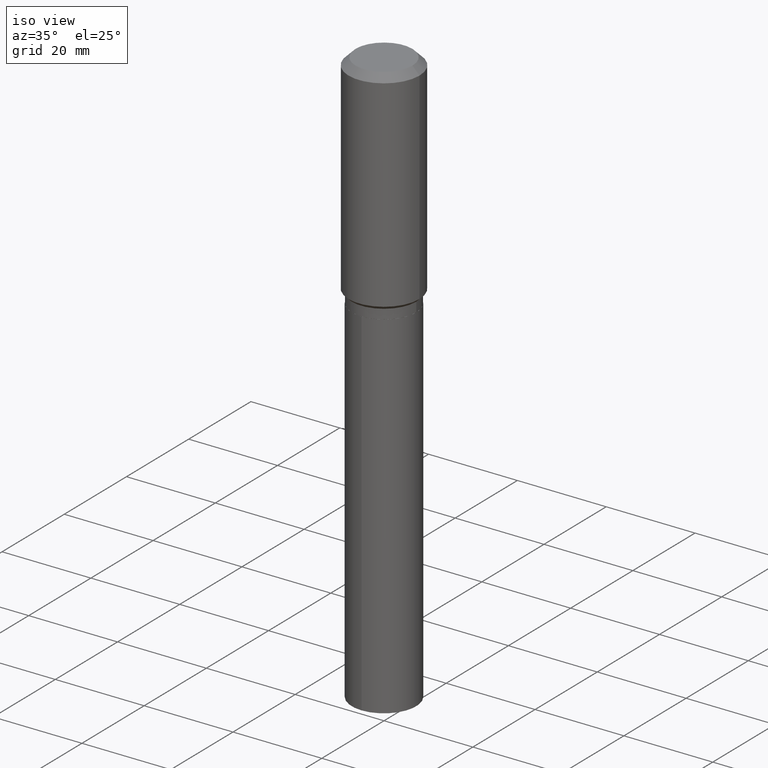
[diagram: clean part render]
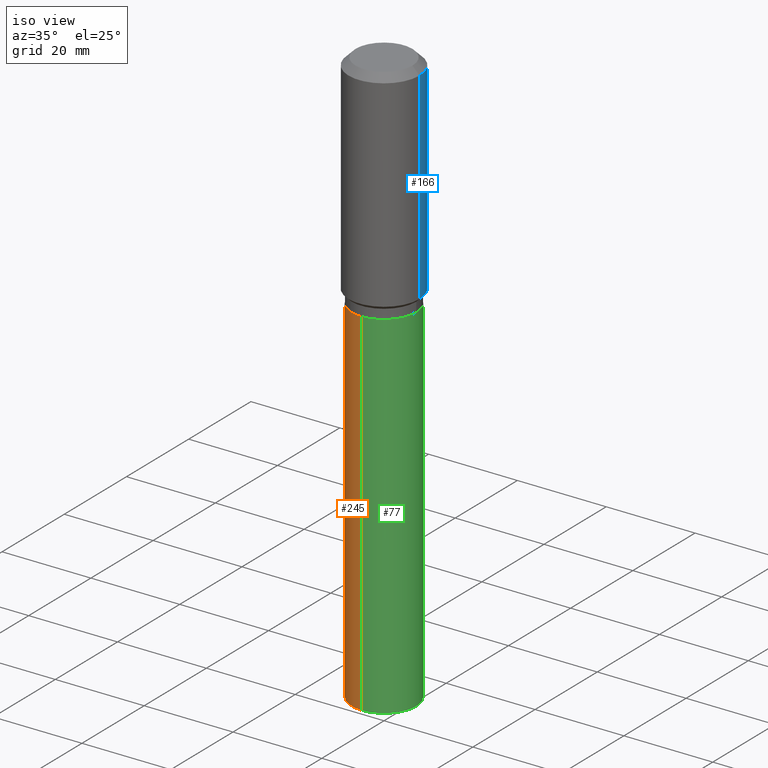
[diagram: same view with three faces highlighted in distinct colors, each labeled with its STEP entity id]
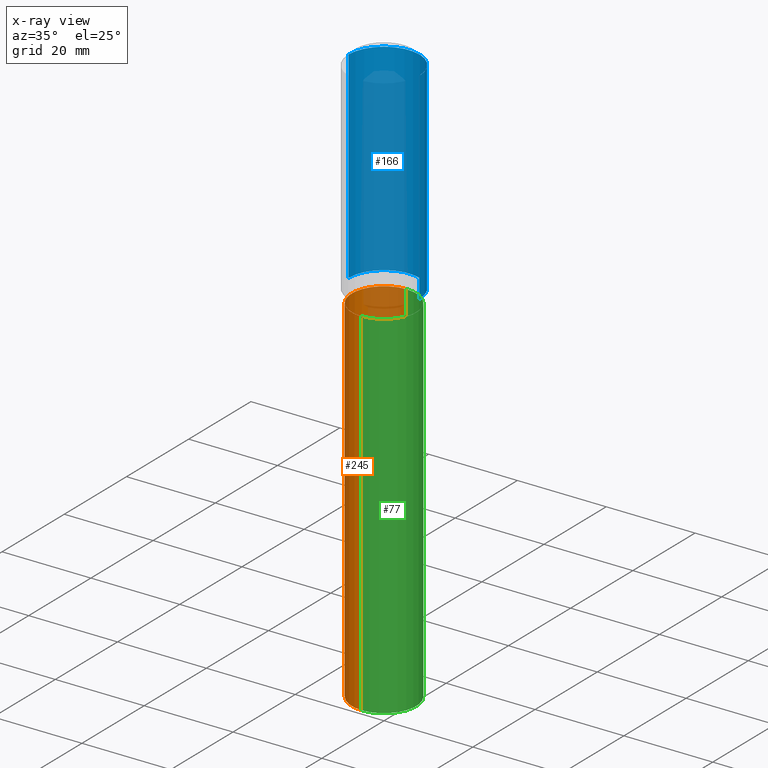
[diagram: x-ray of the same camera — body ghosted, the three highlighted faces saturated]
A machine part, iso view with three faces highlighted in distinct colors.
The next image is the same camera in x-ray (body ghosted, the three faces saturated) — at least one of them is partly hidden behind the body in this view.
Their STEP definitions:

[orange] entity #245 — the highlighted cylindrical surface (partial cylindrical patch) has radius 7.2504 mm, axis along (-0, 0, 1).
#6 = ORIENTED_EDGE ( 'NONE', *, *, #393, .F. ) ;
#15 = DIRECTION ( 'NONE',  ( -6.982962677686265922E-15, -1.000000000000000000, 3.828128209723963046E-15 ) ) ;
#24 = CARTESIAN_POINT ( 'NONE',  ( 2.028244239227331673E-15, 0.2854499999999822180, -5.123558254735715245 ) ) ;
#28 = DIRECTION ( 'NONE',  ( -2.445324435619551208E-29, 3.491688085710125580E-15, 1.000000000000000000 ) ) ;
#34 = AXIS2_PLACEMENT_3D ( 'NONE', #134, #273, #472 ) ;
#41 = VERTEX_POINT ( 'NONE', #71 ) ;
#50 = ORIENTED_EDGE ( 'NONE', *, *, #422, .T. ) ;
#67 = CARTESIAN_POINT ( 'NONE',  ( 2.028244239227331278E-15, 0.2854499999999930981, -1.968300000000000383 ) ) ;
#71 = CARTESIAN_POINT ( 'NONE',  ( -1.993286696345419921E-15, -0.2854500000000179671, -5.123558254735712580 ) ) ;
#74 = VECTOR ( 'NONE', #28, 39.37007874015748143 ) ;
#82 = EDGE_LOOP ( 'NONE', ( #6, #91, #50, #265 ) ) ;
#91 = ORIENTED_EDGE ( 'NONE', *, *, #232, .T. ) ;
#134 = CARTESIAN_POINT ( 'NONE',  ( 1.252904636220974538E-28, -1.788946037464417969E-14, -5.123558254735714357 ) ) ;
#136 = DIRECTION ( 'NONE',  ( -2.445324435619551489E-29, 3.491688085710125580E-15, 1.000000000000000000 ) ) ;
#141 = LINE ( 'NONE', #398, #375 ) ;
#142 = CARTESIAN_POINT ( 'NONE',  ( 4.813416251214202584E-29, -6.872282719244960739E-15, -1.968299999999999272 ) ) ;
#145 = CARTESIAN_POINT ( 'NONE',  ( 4.813416251214202584E-29, -6.872282719244960739E-15, -1.968299999999999272 ) ) ;
#155 = CIRCLE ( 'NONE', #34, 0.2854499999999999815 ) ;
#159 = AXIS2_PLACEMENT_3D ( 'NONE', #145, #136, #15 ) ;
#214 = FACE_OUTER_BOUND ( 'NONE', #82, .T. ) ;
#230 = VERTEX_POINT ( 'NONE', #67 ) ;
#232 = EDGE_CURVE ( 'NONE', #423, #41, #155, .T. ) ;
#242 = VERTEX_POINT ( 'NONE', #307 ) ;
#245 = ADVANCED_FACE ( 'NONE', ( #214 ), #358, .T. ) ;
#265 = ORIENTED_EDGE ( 'NONE', *, *, #336, .F. ) ;
#273 = DIRECTION ( 'NONE',  ( -2.445324435619551489E-29, 3.491688085710125580E-15, 1.000000000000000000 ) ) ;
#282 = DIRECTION ( 'NONE',  ( -2.445324435619551489E-29, 3.491688085710125580E-15, 1.000000000000000000 ) ) ;
#285 = CIRCLE ( 'NONE', #414, 0.2854499999999999815 ) ;
#307 = CARTESIAN_POINT ( 'NONE',  ( -1.993286696345496441E-15, -0.2854500000000068649, -1.968299999999998162 ) ) ;
#323 = DIRECTION ( 'NONE',  ( -2.445324435619551208E-29, 3.491688085710125580E-15, 1.000000000000000000 ) ) ;
#327 = LINE ( 'NONE', #363, #74 ) ;
#336 = EDGE_CURVE ( 'NONE', #230, #242, #285, .T. ) ;
#358 = CYLINDRICAL_SURFACE ( 'NONE', #159, 0.2854499999999999815 ) ;
#363 = CARTESIAN_POINT ( 'NONE',  ( 2.028244239227253575E-15, 0.2854499999999931537, -1.968300000000000383 ) ) ;
#375 = VECTOR ( 'NONE', #323, 39.37007874015748143 ) ;
#393 = EDGE_CURVE ( 'NONE', #423, #230, #327, .T. ) ;
#398 = CARTESIAN_POINT ( 'NONE',  ( -1.993286696345496441E-15, -0.2854500000000068649, -1.968299999999998162 ) ) ;
#414 = AXIS2_PLACEMENT_3D ( 'NONE', #142, #282, #440 ) ;
#422 = EDGE_CURVE ( 'NONE', #41, #242, #141, .T. ) ;
#423 = VERTEX_POINT ( 'NONE', #24 ) ;
#440 = DIRECTION ( 'NONE',  ( -6.982962677686265922E-15, -1.000000000000000000, 3.828128209723963046E-15 ) ) ;
#472 = DIRECTION ( 'NONE',  ( -6.982962677686265922E-15, -1.000000000000000000, 3.828128209723963046E-15 ) ) ;

[blue] entity #166 — the highlighted cylindrical surface (partial cylindrical patch) has radius 7.9997 mm, axis along (-0, 0, 1).
#3 = VECTOR ( 'NONE', #181, 39.37007874015748143 ) ;
#16 = ORIENTED_EDGE ( 'NONE', *, *, #158, .T. ) ;
#30 = CARTESIAN_POINT ( 'NONE',  ( -0.3149500000000001743, 2.237854346276436774E-15, -1.549218606675783237E-29 ) ) ;
#32 = EDGE_LOOP ( 'NONE', ( #16, #201, #152, #85 ) ) ;
#33 = LINE ( 'NONE', #30, #127 ) ;
#65 = DIRECTION ( 'NONE',  ( -2.445468806185136597E-29, 3.491481338843145583E-15, 1.000000000000000000 ) ) ;
#85 = ORIENTED_EDGE ( 'NONE', *, *, #261, .F. ) ;
#97 = LINE ( 'NONE', #391, #3 ) ;
#102 = CARTESIAN_POINT ( 'NONE',  ( 0.3149500000000002298, -8.668649868079754176E-15, -1.852899999999999547 ) ) ;
#113 = EDGE_CURVE ( 'NONE', #138, #377, #33, .T. ) ;
#127 = VECTOR ( 'NONE', #220, 39.37007874015748143 ) ;
#138 = VERTEX_POINT ( 'NONE', #411 ) ;
#152 = ORIENTED_EDGE ( 'NONE', *, *, #478, .F. ) ;
#158 = EDGE_CURVE ( 'NONE', #239, #138, #459, .T. ) ;
#166 = ADVANCED_FACE ( 'NONE', ( #197 ), #270, .T. ) ;
#167 = CIRCLE ( 'NONE', #350, 0.3149500000000000077 ) ;
#179 = CARTESIAN_POINT ( 'NONE',  ( 0.3149500000000000077, -2.419212504871020909E-15, -0.06299000000000037902 ) ) ;
#181 = DIRECTION ( 'NONE',  ( -2.445468806185136877E-29, 3.491481338843145188E-15, 1.000000000000000000 ) ) ;
#197 = FACE_OUTER_BOUND ( 'NONE', #32, .T. ) ;
#201 = ORIENTED_EDGE ( 'NONE', *, *, #113, .T. ) ;
#215 = AXIS2_PLACEMENT_3D ( 'NONE', #456, #316, #303 ) ;
#220 = DIRECTION ( 'NONE',  ( -2.445468806185136877E-29, 3.491481338843145188E-15, 1.000000000000000000 ) ) ;
#239 = VERTEX_POINT ( 'NONE', #102 ) ;
#251 = DIRECTION ( 'NONE',  ( 1.000000000000000000, -6.982962677686264344E-15, 0.000000000000000000 ) ) ;
#255 = AXIS2_PLACEMENT_3D ( 'NONE', #288, #406, #251 ) ;
#258 = CARTESIAN_POINT ( 'NONE',  ( -0.3149500000000000077, -1.106792744861659912E-15, -0.06299000000000037902 ) ) ;
#261 = EDGE_CURVE ( 'NONE', #239, #413, #97, .T. ) ;
#270 = CYLINDRICAL_SURFACE ( 'NONE', #215, 0.3149500000000001743 ) ;
#288 = CARTESIAN_POINT ( 'NONE',  ( 4.531209150980438038E-29, -6.469365772742462727E-15, -1.852899999999999547 ) ) ;
#303 = DIRECTION ( 'NONE',  ( 1.000000000000000000, -6.982962677686265922E-15, 4.876176775795935232E-29 ) ) ;
#310 = CARTESIAN_POINT ( 'NONE',  ( 1.540400801016026505E-30, -2.199284095337310628E-16, -0.06299000000000037902 ) ) ;
#316 = DIRECTION ( 'NONE',  ( -2.445468806185136597E-29, 3.491481338843145583E-15, 1.000000000000000000 ) ) ;
#321 = DIRECTION ( 'NONE',  ( 1.000000000000000000, -6.982962677686266711E-15, 0.000000000000000000 ) ) ;
#350 = AXIS2_PLACEMENT_3D ( 'NONE', #310, #65, #321 ) ;
#377 = VERTEX_POINT ( 'NONE', #258 ) ;
#391 = CARTESIAN_POINT ( 'NONE',  ( 0.3149500000000001743, -2.199284095337290660E-15, 1.535751875536930690E-29 ) ) ;
#406 = DIRECTION ( 'NONE',  ( -2.445468806185136597E-29, 3.491481338843145583E-15, 1.000000000000000000 ) ) ;
#411 = CARTESIAN_POINT ( 'NONE',  ( -0.3149500000000002298, -4.231511426466025954E-15, -1.852899999999999547 ) ) ;
#413 = VERTEX_POINT ( 'NONE', #179 ) ;
#456 = CARTESIAN_POINT ( 'NONE',  ( 0.000000000000000000, 0.000000000000000000, 0.000000000000000000 ) ) ;
#459 = CIRCLE ( 'NONE', #255, 0.3149500000000002298 ) ;
#478 = EDGE_CURVE ( 'NONE', #413, #377, #167, .T. ) ;

[green] entity #77 — the highlighted cylindrical surface (partial cylindrical patch) has radius 7.2504 mm, axis along (-0, 0, 1).
#24 = CARTESIAN_POINT ( 'NONE',  ( 2.028244239227331673E-15, 0.2854499999999822180, -5.123558254735715245 ) ) ;
#28 = DIRECTION ( 'NONE',  ( -2.445324435619551208E-29, 3.491688085710125580E-15, 1.000000000000000000 ) ) ;
#41 = VERTEX_POINT ( 'NONE', #71 ) ;
#55 = ORIENTED_EDGE ( 'NONE', *, *, #264, .F. ) ;
#62 = EDGE_CURVE ( 'NONE', #41, #423, #337, .T. ) ;
#67 = CARTESIAN_POINT ( 'NONE',  ( 2.028244239227331278E-15, 0.2854499999999930981, -1.968300000000000383 ) ) ;
#71 = CARTESIAN_POINT ( 'NONE',  ( -1.993286696345419921E-15, -0.2854500000000179671, -5.123558254735712580 ) ) ;
#72 = AXIS2_PLACEMENT_3D ( 'NONE', #444, #221, #447 ) ;
#74 = VECTOR ( 'NONE', #28, 39.37007874015748143 ) ;
#77 = ADVANCED_FACE ( 'NONE', ( #180 ), #112, .T. ) ;
#84 = ORIENTED_EDGE ( 'NONE', *, *, #422, .F. ) ;
#112 = CYLINDRICAL_SURFACE ( 'NONE', #290, 0.2854499999999999815 ) ;
#141 = LINE ( 'NONE', #398, #375 ) ;
#169 = EDGE_LOOP ( 'NONE', ( #425, #460, #55, #84 ) ) ;
#180 = FACE_OUTER_BOUND ( 'NONE', #169, .T. ) ;
#221 = DIRECTION ( 'NONE',  ( -2.445324435619551489E-29, 3.491688085710125580E-15, 1.000000000000000000 ) ) ;
#230 = VERTEX_POINT ( 'NONE', #67 ) ;
#242 = VERTEX_POINT ( 'NONE', #307 ) ;
#243 = DIRECTION ( 'NONE',  ( -6.982962677686265922E-15, -1.000000000000000000, 3.828128209723963046E-15 ) ) ;
#249 = CIRCLE ( 'NONE', #430, 0.2854499999999999815 ) ;
#253 = CARTESIAN_POINT ( 'NONE',  ( 4.813416251214202584E-29, -6.872282719244960739E-15, -1.968299999999999272 ) ) ;
#264 = EDGE_CURVE ( 'NONE', #242, #230, #249, .T. ) ;
#290 = AXIS2_PLACEMENT_3D ( 'NONE', #253, #335, #487 ) ;
#307 = CARTESIAN_POINT ( 'NONE',  ( -1.993286696345496441E-15, -0.2854500000000068649, -1.968299999999998162 ) ) ;
#323 = DIRECTION ( 'NONE',  ( -2.445324435619551208E-29, 3.491688085710125580E-15, 1.000000000000000000 ) ) ;
#325 = CARTESIAN_POINT ( 'NONE',  ( 4.813416251214202584E-29, -6.872282719244960739E-15, -1.968299999999999272 ) ) ;
#327 = LINE ( 'NONE', #363, #74 ) ;
#335 = DIRECTION ( 'NONE',  ( -2.445324435619551489E-29, 3.491688085710125580E-15, 1.000000000000000000 ) ) ;
#337 = CIRCLE ( 'NONE', #72, 0.2854499999999999815 ) ;
#363 = CARTESIAN_POINT ( 'NONE',  ( 2.028244239227253575E-15, 0.2854499999999931537, -1.968300000000000383 ) ) ;
#375 = VECTOR ( 'NONE', #323, 39.37007874015748143 ) ;
#393 = EDGE_CURVE ( 'NONE', #423, #230, #327, .T. ) ;
#398 = CARTESIAN_POINT ( 'NONE',  ( -1.993286696345496441E-15, -0.2854500000000068649, -1.968299999999998162 ) ) ;
#422 = EDGE_CURVE ( 'NONE', #41, #242, #141, .T. ) ;
#423 = VERTEX_POINT ( 'NONE', #24 ) ;
#425 = ORIENTED_EDGE ( 'NONE', *, *, #62, .T. ) ;
#430 = AXIS2_PLACEMENT_3D ( 'NONE', #325, #436, #243 ) ;
#436 = DIRECTION ( 'NONE',  ( -2.445324435619551489E-29, 3.491688085710125580E-15, 1.000000000000000000 ) ) ;
#444 = CARTESIAN_POINT ( 'NONE',  ( 1.252904636220974538E-28, -1.788946037464417969E-14, -5.123558254735714357 ) ) ;
#447 = DIRECTION ( 'NONE',  ( -6.982962677686265922E-15, -1.000000000000000000, 3.828128209723963046E-15 ) ) ;
#460 = ORIENTED_EDGE ( 'NONE', *, *, #393, .T. ) ;
#487 = DIRECTION ( 'NONE',  ( -6.982962677686265922E-15, -1.000000000000000000, 3.828128209723963046E-15 ) ) ;